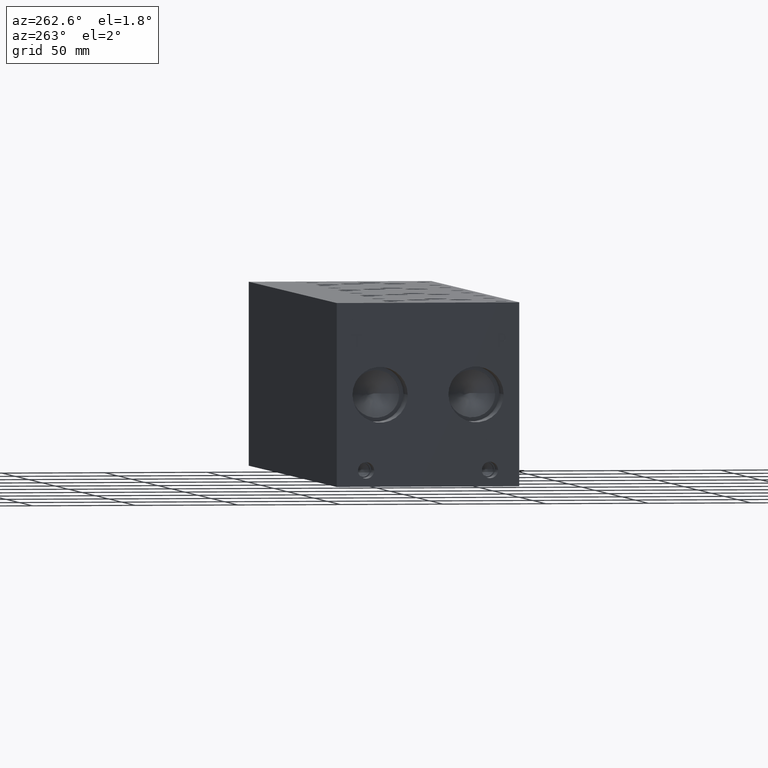
[diagram: clean part render]
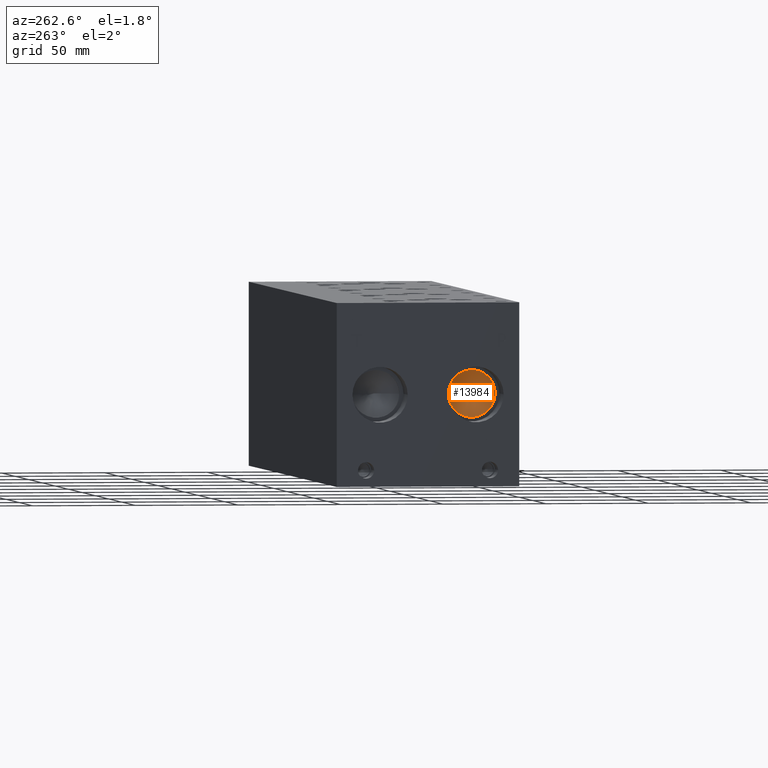
[diagram: same view with one face highlighted and labeled with its STEP entity id]
A machine part, auxiliary view. The second image highlights one B-rep face of the part: STEP entity #13984.
In plain terms, the highlighted conical surface has half-angle 60 deg.
Its self-contained STEP definition (entity closure, byte-faithful):
#103=CONICAL_SURFACE('',#14619,5.7531,1.0471975511966);
#388=CIRCLE('',#14620,11.5062);
#389=CIRCLE('',#14621,11.5062);
#1684=FACE_OUTER_BOUND('',#2490,.T.);
#2490=EDGE_LOOP('',(#11721,#11722,#11723,#11724));
#3873=LINE('',#23514,#5168);
#5168=VECTOR('',#17134,5.7531);
#6364=VERTEX_POINT('',#23510);
#6365=VERTEX_POINT('',#23511);
#6366=VERTEX_POINT('',#23513);
#8232=EDGE_CURVE('',#6364,#6365,#388,.T.);
#8233=EDGE_CURVE('',#6365,#6366,#3873,.T.);
#8234=EDGE_CURVE('',#6365,#6364,#389,.T.);
#11721=ORIENTED_EDGE('',*,*,#8232,.T.);
#11722=ORIENTED_EDGE('',*,*,#8233,.T.);
#11723=ORIENTED_EDGE('',*,*,#8233,.F.);
#11724=ORIENTED_EDGE('',*,*,#8234,.T.);
#13984=ADVANCED_FACE('',(#1684),#103,.F.);
#14619=AXIS2_PLACEMENT_3D('',#23509,#17130,#17131);
#14620=AXIS2_PLACEMENT_3D('',#23512,#17132,#17133);
#14621=AXIS2_PLACEMENT_3D('',#23515,#17135,#17136);
#17130=DIRECTION('center_axis',(-1.,0.,0.));
#17131=DIRECTION('ref_axis',(0.,1.,0.));
#17132=DIRECTION('center_axis',(-1.,0.,0.));
#17133=DIRECTION('ref_axis',(0.,1.,0.));
#17134=DIRECTION('',(0.5,0.866025403784439,-1.06057523872491E-16));
#17135=DIRECTION('center_axis',(-1.,0.,0.));
#17136=DIRECTION('ref_axis',(0.,1.,0.));
#23509=CARTESIAN_POINT('Origin',(19.8354638336748,21.082,44.45));
#23510=CARTESIAN_POINT('',(16.51391,32.5882,44.45));
#23511=CARTESIAN_POINT('',(16.51391,9.5758,44.45));
#23512=CARTESIAN_POINT('Origin',(16.51391,21.082,44.45));
#23513=CARTESIAN_POINT('',(23.1570176673497,21.082,44.45));
#23514=CARTESIAN_POINT('',(19.8354638336748,15.3289,44.45));
#23515=CARTESIAN_POINT('Origin',(16.51391,21.082,44.45));